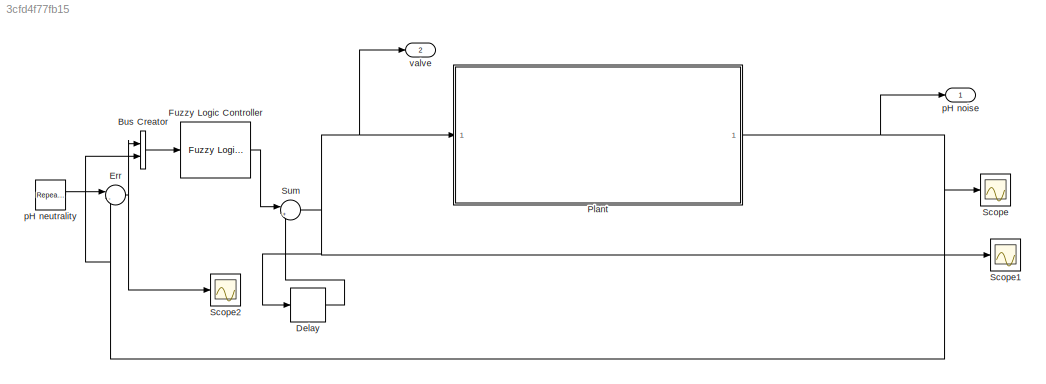
MODEL slx_3cfd4f77fb15
KIND model
CONFIG AbsTol = auto
CONFIG EnableMultiTasking = off
CONFIG FixedStep = auto
CONFIG MaxStep = auto
CONFIG MinStep = auto
CONFIG RelTol = 1e-3
CONFIG SampleTimeConstraint = Unconstrained
CONFIG Solver = VariableStepAuto
CONFIG SolverName = VariableStepAuto
CONFIG StartTime = 0.0
CONFIG StopTime = 200
BLOCK [BusCreator] Bus Creator
  DisplayOption = bar
  InheritFromInputs = on
  Inputs = 2
  Ports = [2, 1]
BLOCK [Delay] Delay
  DelayLength = 1
  InitialCondition = 0
  InputPortMap = u0
  Ports = [1, 1]
BLOCK [Sum] Err
  Inputs = |-+
  Ports = [2, 1]
BLOCK [Reference] Fuzzy Logic Controller  REF=fuzblock/Fuzzy Logic   (lib defined in mdl_858b3b3e7478)
Controller
  Ports = [1, 1]
  SourceBlock = fuzblock/Fuzzy Logic \nController
  SourceProductBaseCode = FL
  SourceType = Fuzzy Inference System
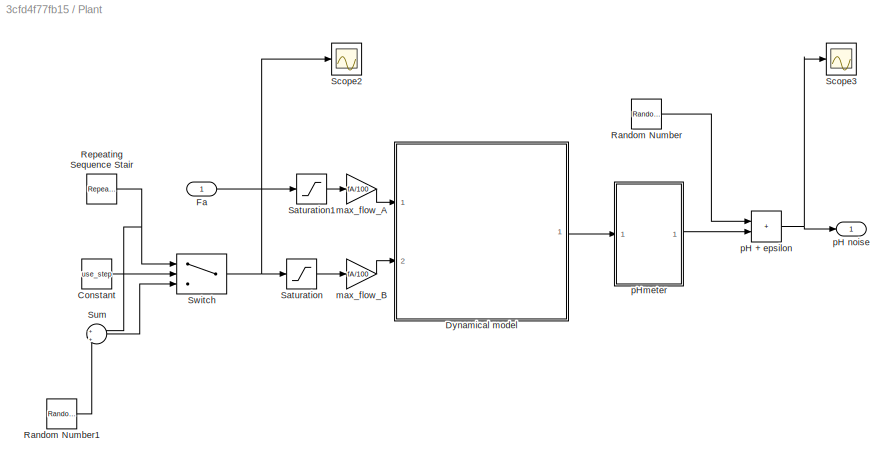
BLOCK [SubSystem] Plant
  Ports = [1, 1]
  RequestExecContextInheritance = off
BLOCK [Constant] Plant/Constant
  Value = use_step
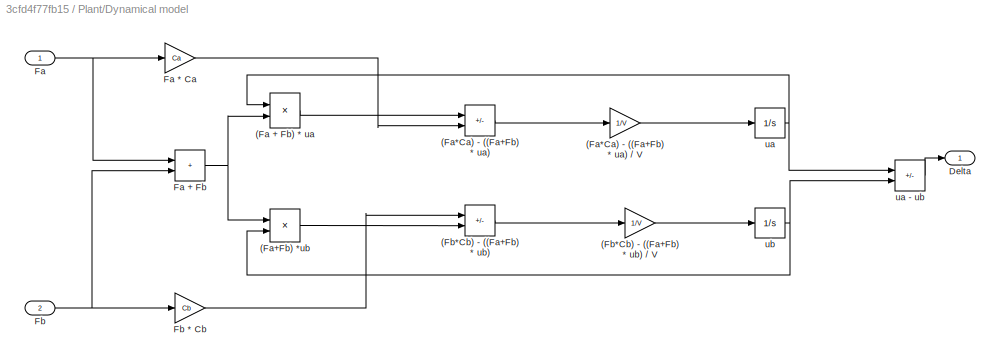
BLOCK [SubSystem] Plant/Dynamical model
  Ports = [2, 1]
  RequestExecContextInheritance = off
BLOCK [Product] Plant/Dynamical model/(Fa + Fb) * ua 
  Inputs = **
  Ports = [2, 1]
BLOCK [Sum] Plant/Dynamical model/(Fa*Ca) - ((Fa+Fb) * ua)
  IconShape = rectangular
  Inputs = -+
  Ports = [2, 1]
BLOCK [Gain] Plant/Dynamical model/(Fa*Ca) - ((Fa+Fb) * ua) // V
  Gain = 1/V
BLOCK [Product] Plant/Dynamical model/(Fa+Fb) *ub  
  Inputs = **
  Ports = [2, 1]
BLOCK [Sum] Plant/Dynamical model/(Fb*Cb) - ((Fa+Fb) * ub)
  IconShape = rectangular
  Inputs = +-
  Ports = [2, 1]
BLOCK [Gain] Plant/Dynamical model/(Fb*Cb) - ((Fa+Fb) * ub) // V
  Gain = 1/V
BLOCK [Outport] Plant/Dynamical model/Delta
BLOCK [Inport] Plant/Dynamical model/Fa
BLOCK [Gain] Plant/Dynamical model/Fa * Ca 
  Gain = Ca
BLOCK [Sum] Plant/Dynamical model/Fa + Fb
  IconShape = rectangular
  Ports = [2, 1]
BLOCK [Inport] Plant/Dynamical model/Fb
  Port = 2
BLOCK [Gain] Plant/Dynamical model/Fb * Cb
  Gain = Cb
BLOCK [Integrator] Plant/Dynamical model/ua
  LimitOutput = on
  LowerSaturationLimit = 0
  Ports = [1, 1]
  UpperSaturationLimit = 1
BLOCK [Sum] Plant/Dynamical model/ua - ub
  IconShape = rectangular
  Inputs = +-
  Ports = [2, 1]
BLOCK [Integrator] Plant/Dynamical model/ub
  LimitOutput = on
  LowerSaturationLimit = 0
  Ports = [1, 1]
  UpperSaturationLimit = 1
BLOCK [Inport] Plant/Fa
BLOCK [RandomNumber] Plant/Random Number
  SampleTime = dt
  Variance = 0.01
BLOCK [RandomNumber] Plant/Random Number1
  SampleTime = 1
  Variance = 4
BLOCK [Reference] Plant/Repeating Sequence Stair  REF=simulink/Sources/Repeating
Sequence
Stair
  Ports = [0, 1]
  SourceBlock = simulink/Sources/Repeating\nSequence\nStair
  SourceProductBaseCode = SL
  SourceType = Repeating Sequence Stair
BLOCK [Saturate] Plant/Saturation
  LowerLimit = 0
  UpperLimit = 100
BLOCK [Saturate] Plant/Saturation1
  LowerLimit = 0
  UpperLimit = 100
BLOCK [Scope] Plant/Scope2
  Floating = off
  NumInputPorts = 1
  Ports = [1]
  ScopeSpecificationString = Simulink.scopes.TimeScopeBlockCfg('CurrentConfiguration', extmgr.ConfigurationSet(extmgr.Configuration('Core','General UI',true),extmgr.Configuration('Core','Source UI',true),extmgr.Configuration('Sources','WiredSimulink',true,'DataLoggingVariableName','ScopeData1'),extmgr.Configuration('Visuals','Time Domain',true,'SerializedDisplays',{struct('MinYLimReal','-6.25','MaxYLimReal','56.25','YLabelRea...<+1351ch>
BLOCK [Scope] Plant/Scope3
  Floating = off
  NumInputPorts = 1
  Ports = [1]
  ScopeSpecificationString = Simulink.scopes.TimeScopeBlockCfg('CurrentConfiguration', extmgr.ConfigurationSet(extmgr.Configuration('Core','General UI',true),extmgr.Configuration('Core','Source UI',true),extmgr.Configuration('Sources','WiredSimulink',true,'DataLoggingVariableName','ScopeData1'),extmgr.Configuration('Visuals','Time Domain',true,'SerializedDisplays',{struct('MinYLimReal','6.75','MaxYLimReal','9.25','YLabelReal'...<+1345ch>
BLOCK [Sum] Plant/Sum
  Inputs = +|+
  Ports = [2, 1]
BLOCK [Switch] Plant/Switch
  Criteria = u2 > Threshold
  InputSameDT = off
  SaturateOnIntegerOverflow = off
BLOCK [Gain] Plant/max_flow_A
  Gain = fA/100
BLOCK [Gain] Plant/max_flow_B
  Gain = fA/100
BLOCK [Sum] Plant/pH + epsilon
  IconShape = rectangular
  Ports = [2, 1]
BLOCK [Outport] Plant/pH noise
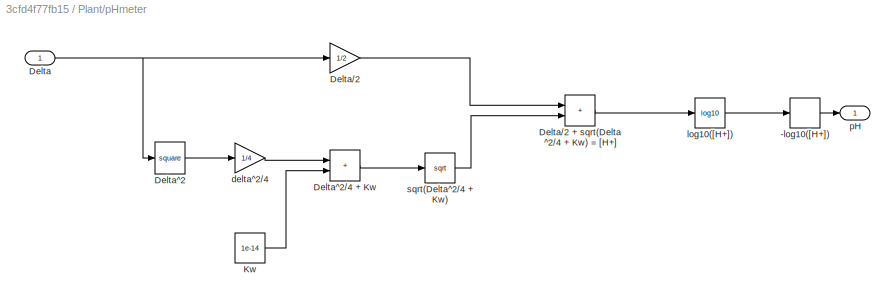
BLOCK [SubSystem] Plant/pHmeter
  Ports = [1, 1]
  RequestExecContextInheritance = off
BLOCK [UnaryMinus] Plant/pHmeter/-log10([H+])
BLOCK [Inport] Plant/pHmeter/Delta
BLOCK [Gain] Plant/pHmeter/Delta//2
  Gain = 1/2
BLOCK [Sum] Plant/pHmeter/Delta//2 + sqrt(Delta^2//4 + Kw) = [H+]
  IconShape = rectangular
  Ports = [2, 1]
BLOCK [Math] Plant/pHmeter/Delta^2
  Operator = square
  Ports = [1, 1]
BLOCK [Sum] Plant/pHmeter/Delta^2//4 + Kw
  IconShape = rectangular
  Ports = [2, 1]
BLOCK [Constant] Plant/pHmeter/Kw
  Value = 1e-14
BLOCK [Gain] Plant/pHmeter/delta^2//4
  Gain = 1/4
BLOCK [Math] Plant/pHmeter/log10([H+]) 
  Operator = log10
  Ports = [1, 1]
BLOCK [Outport] Plant/pHmeter/pH
BLOCK [Sqrt] Plant/pHmeter/sqrt(Delta^2//4 + Kw)
BLOCK [Scope] Scope
  Floating = off
  NumInputPorts = 1
  Ports = [1]
  ScopeSpecificationString = Simulink.scopes.TimeScopeBlockCfg('CurrentConfiguration', extmgr.ConfigurationSet(extmgr.Configuration('Core','General UI',true),extmgr.Configuration('Core','Source UI',true),extmgr.Configuration('Sources','WiredSimulink',true,'DataLoggingVariableName','ScopeData1'),extmgr.Configuration('Visuals','Time Domain',true,'SerializedDisplays',{struct('MinYLimReal','3.21824','MaxYLimReal','12.73664','YLab...<+1389ch>
BLOCK [Scope] Scope1
  Floating = off
  NumInputPorts = 1
  Ports = [1]
  ScopeSpecificationString = Simulink.scopes.TimeScopeBlockCfg('CurrentConfiguration', extmgr.ConfigurationSet(extmgr.Configuration('Core','General UI',true),extmgr.Configuration('Core','Source UI',true),extmgr.Configuration('Sources','WiredSimulink',true,'DataLoggingVariableName','ScopeData2'),extmgr.Configuration('Visuals','Time Domain',true,'SerializedDisplays',{struct('MinYLimReal','-6.35055','MaxYLimReal','57.16285','YLa...<+1395ch>
BLOCK [Scope] Scope2
  Floating = off
  NumInputPorts = 1
  Ports = [1]
  ScopeSpecificationString = Simulink.scopes.TimeScopeBlockCfg('CurrentConfiguration', extmgr.ConfigurationSet(extmgr.Configuration('Core','General UI',true),extmgr.Configuration('Core','Source UI',true),extmgr.Configuration('Sources','WiredSimulink',true,'DataLoggingVariableName','ScopeData1'),extmgr.Configuration('Visuals','Time Domain',true,'SerializedDisplays',{struct('MinYLimReal','-3.74107','MaxYLimReal','5.73212','YLab...<+1362ch>
BLOCK [Sum] Sum
  Inputs = |++
  Ports = [2, 1]
BLOCK [Reference] pH neutrality  REF=simulink/Sources/Repeating
Sequence
Stair
  Ports = [0, 1]
  SourceBlock = simulink/Sources/Repeating\nSequence\nStair
  SourceProductBaseCode = SL
  SourceType = Repeating Sequence Stair
BLOCK [Outport] pH noise
  SignalName = ph_noise
BLOCK [Outport] valve
  Port = 2
  SignalName = valve
LINE Bus Creator:1 -> Fuzzy Logic Controller:1
LINE Delay:1 -> Sum:2
NET Err:1 -> Bus Creator:1, Scope2:1
LINE Fuzzy Logic Controller:1 -> Sum:1
LINE Plant/Constant:1 -> Plant/Switch:2
LINE Plant/Dynamical model/(Fa + Fb) * ua :1 -> Plant/Dynamical model/(Fa*Ca) - ((Fa+Fb) * ua):1
LINE Plant/Dynamical model/(Fa*Ca) - ((Fa+Fb) * ua) // V:1 -> Plant/Dynamical model/ua:1
LINE Plant/Dynamical model/(Fa*Ca) - ((Fa+Fb) * ua):1 -> Plant/Dynamical model/(Fa*Ca) - ((Fa+Fb) * ua) // V:1
LINE Plant/Dynamical model/(Fa+Fb) *ub  :1 -> Plant/Dynamical model/(Fb*Cb) - ((Fa+Fb) * ub):2
LINE Plant/Dynamical model/(Fb*Cb) - ((Fa+Fb) * ub) // V:1 -> Plant/Dynamical model/ub:1
LINE Plant/Dynamical model/(Fb*Cb) - ((Fa+Fb) * ub):1 -> Plant/Dynamical model/(Fb*Cb) - ((Fa+Fb) * ub) // V:1
LINE Plant/Dynamical model/Fa * Ca :1 -> Plant/Dynamical model/(Fa*Ca) - ((Fa+Fb) * ua):2
NET Plant/Dynamical model/Fa + Fb:1 -> Plant/Dynamical model/(Fa + Fb) * ua :2, Plant/Dynamical model/(Fa+Fb) *ub  :1
NET Plant/Dynamical model/Fa:1 -> Plant/Dynamical model/Fa * Ca :1, Plant/Dynamical model/Fa + Fb:1
LINE Plant/Dynamical model/Fb * Cb:1 -> Plant/Dynamical model/(Fb*Cb) - ((Fa+Fb) * ub):1
NET Plant/Dynamical model/Fb:1 -> Plant/Dynamical model/Fa + Fb:2, Plant/Dynamical model/Fb * Cb:1
LINE Plant/Dynamical model/ua - ub:1 -> Plant/Dynamical model/Delta:1
NET Plant/Dynamical model/ua:1 -> Plant/Dynamical model/(Fa + Fb) * ua :1, Plant/Dynamical model/ua - ub:1
NET Plant/Dynamical model/ub:1 -> Plant/Dynamical model/(Fa+Fb) *ub  :2, Plant/Dynamical model/ua - ub:2
LINE Plant/Dynamical model:1 -> Plant/pHmeter:1
LINE Plant/Fa:1 -> Plant/Saturation1:1
LINE Plant/Random Number1:1 -> Plant/Sum:2
LINE Plant/Random Number:1 -> Plant/pH + epsilon:1
NET Plant/Repeating Sequence Stair:1 -> Plant/Sum:1, Plant/Switch:1
LINE Plant/Saturation1:1 -> Plant/max_flow_A:1
LINE Plant/Saturation:1 -> Plant/max_flow_B:1
LINE Plant/Sum:1 -> Plant/Switch:3
NET Plant/Switch:1 -> Plant/Saturation:1, Plant/Scope2:1
LINE Plant/max_flow_A:1 -> Plant/Dynamical model:1
LINE Plant/max_flow_B:1 -> Plant/Dynamical model:2
NET Plant/pH + epsilon:1 -> Plant/Scope3:1, Plant/pH noise:1
LINE Plant/pHmeter/-log10([H+]):1 -> Plant/pHmeter/pH:1
LINE Plant/pHmeter/Delta//2 + sqrt(Delta^2//4 + Kw) = [H+]:1 -> Plant/pHmeter/log10([H+]) :1
LINE Plant/pHmeter/Delta//2:1 -> Plant/pHmeter/Delta//2 + sqrt(Delta^2//4 + Kw) = [H+]:1
NET Plant/pHmeter/Delta:1 -> Plant/pHmeter/Delta//2:1, Plant/pHmeter/Delta^2:1
LINE Plant/pHmeter/Delta^2//4 + Kw:1 -> Plant/pHmeter/sqrt(Delta^2//4 + Kw):1
LINE Plant/pHmeter/Delta^2:1 -> Plant/pHmeter/delta^2//4:1
LINE Plant/pHmeter/Kw:1 -> Plant/pHmeter/Delta^2//4 + Kw:2
LINE Plant/pHmeter/delta^2//4:1 -> Plant/pHmeter/Delta^2//4 + Kw:1
LINE Plant/pHmeter/log10([H+]) :1 -> Plant/pHmeter/-log10([H+]):1
LINE Plant/pHmeter/sqrt(Delta^2//4 + Kw):1 -> Plant/pHmeter/Delta//2 + sqrt(Delta^2//4 + Kw) = [H+]:2
LINE Plant/pHmeter:1 -> Plant/pH + epsilon:2
NET Plant:1 -> Bus Creator:2, Err:2, Scope:1, pH noise:1
NET Sum:1 -> Delay:1, Plant:1, Scope1:1, valve:1
LINE pH neutrality:1 -> Err:1
note: NET lines group one-source signal fan-out (src -> all destinations, sorted); 1:1 wires keep LINE
